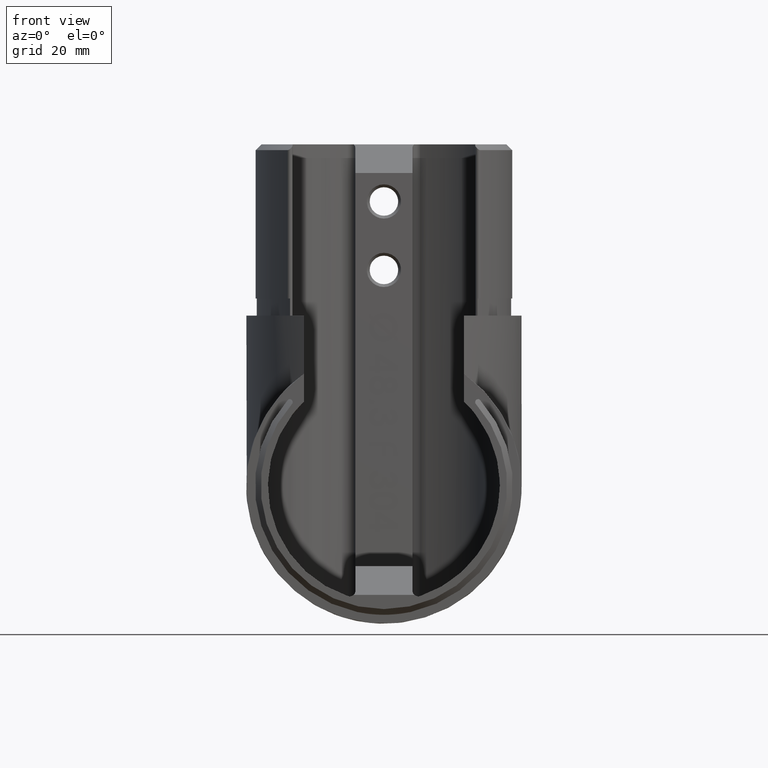
[diagram: clean part render]
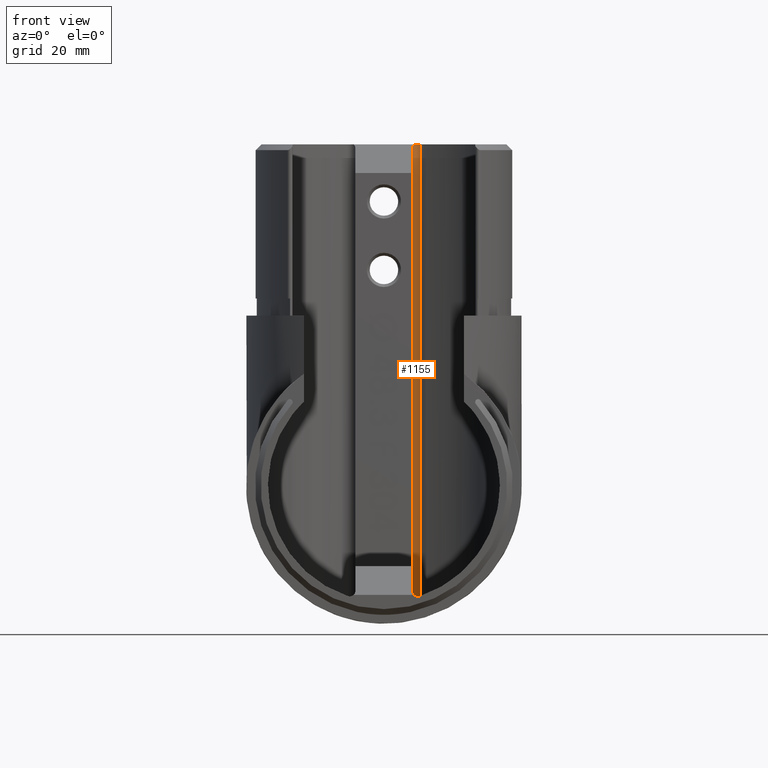
[diagram: same view with one face highlighted and labeled with its STEP entity id]
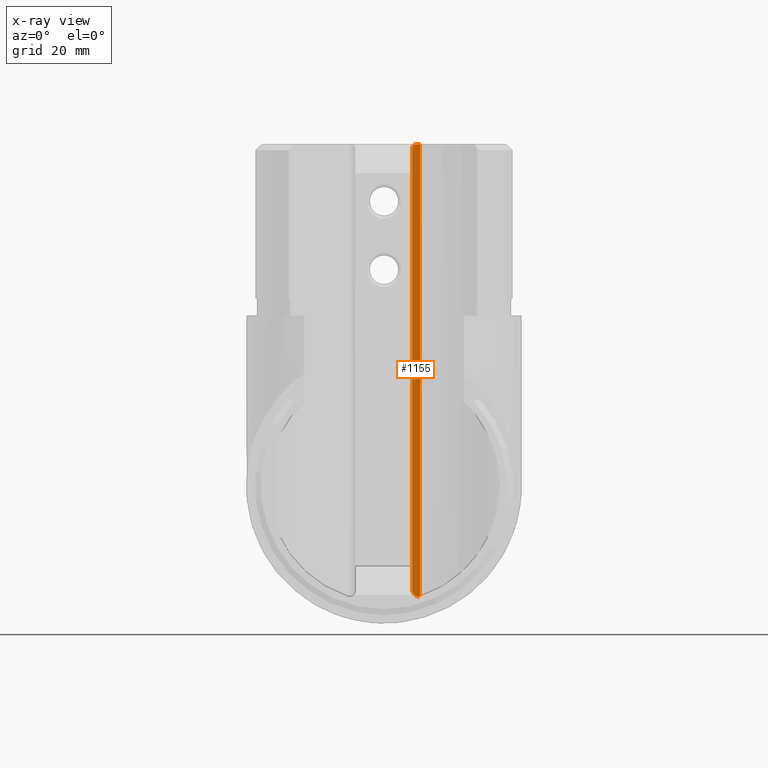
[diagram: x-ray of the same camera — body ghosted, the highlighted face saturated]
A machine part, front view. The second image highlights one B-rep face of the part: STEP entity #1155.
The next image is the same camera in x-ray: the body ghosted, the highlighted face saturated — about 0% of this face is hidden behind the body in this view.
In plain terms, the highlighted cylindrical surface (edge-blend (fillet) strip) has radius 1 mm, axis along (0, -0, 1).
Its self-contained STEP definition (entity closure, byte-faithful):
#149 = DIRECTION ( 'NONE',  ( -0.0000000000000000000, 1.162293786249117100E-016, -1.000000000000000000 ) ) ;
#1155 = ADVANCED_FACE ( 'NONE', ( #11790 ), #7794, .F. ) ;
#1224 = CARTESIAN_POINT ( 'NONE',  ( 5.000000000000002700, 48.99060178258699900, -19.14060178258699100 ) ) ;
#1740 = EDGE_CURVE ( 'NONE', #7607, #15213, #20425, .T. ) ;
#4608 = VERTEX_POINT ( 'NONE', #24012 ) ;
#5148 = CARTESIAN_POINT ( 'NONE',  ( 5.000000000000000900, 48.24626320751038100, -18.39626320751036900 ) ) ;
#6542 = CARTESIAN_POINT ( 'NONE',  ( 6.310077519379847300, 49.19697448438429900, 2.248686822592009200E-015 ) ) ;
#6852 = CARTESIAN_POINT ( 'NONE',  ( 6.310077519379850800, 49.19697448438429900, -19.34697448438430100 ) ) ;
#6918 = EDGE_CURVE ( 'NONE', #24175, #7607, #10136, .T. ) ;
#7453 = DIRECTION ( 'NONE',  ( -1.791851119715557300E-032, -1.162293786249117100E-016, 1.000000000000000000 ) ) ;
#7607 = VERTEX_POINT ( 'NONE', #12522 ) ;
#7794 = CYLINDRICAL_SURFACE ( 'NONE', #7894, 1.000000000000000900 ) ;
#7894 = AXIS2_PLACEMENT_3D ( 'NONE', #22112, #10361, #8646 ) ;
#8646 = DIRECTION ( 'NONE',  ( 0.0000000000000000000, -1.000000000000000000, -1.162293786249115900E-016 ) ) ;
#9300 = CARTESIAN_POINT ( 'NONE',  ( 5.000000000000000900, 48.24626320751037400, 59.85000000000000100 ) ) ;
#9347 = VECTOR ( 'NONE', #149, 1000.000000000000000 ) ;
#9651 = VECTOR ( 'NONE', #7453, 1000.000000000000000 ) ;
#9988 = LINE ( 'NONE', #9300, #9651 ) ;
#10136 = CIRCLE ( 'NONE', #22583, 1.000000000000000000 ) ;
#10361 = DIRECTION ( 'NONE',  ( 0.0000000000000000000, -1.162293786249117100E-016, 1.000000000000000000 ) ) ;
#10532 = DIRECTION ( 'NONE',  ( -0.0000000000000000000, -0.0000000000000000000, -1.000000000000000000 ) ) ;
#10651 =( BOUNDED_CURVE ( )  B_SPLINE_CURVE ( 3, ( #24091, #12351, #22475, #24178 ),
 .UNSPECIFIED., .F., .F. ) 
 B_SPLINE_CURVE_WITH_KNOTS ( ( 4, 4 ),
 ( 4.712388980359855300, 5.493032545230442500 ),
 .UNSPECIFIED. ) 
 CURVE ( )  GEOMETRIC_REPRESENTATION_ITEM ( )  RATIONAL_B_SPLINE_CURVE ( ( 1.000000000000000000, 0.9498577826806491300, 0.9498577826806491300, 1.000000000000000000 ) ) 
 REPRESENTATION_ITEM ( '' )  );
#11251 = EDGE_LOOP ( 'NONE', ( #15614, #24566, #16526, #23962, #24798 ) ) ;
#11790 = FACE_OUTER_BOUND ( 'NONE', #11251, .T. ) ;
#12351 = CARTESIAN_POINT ( 'NONE',  ( 4.999999999993368000, 48.51331091495099200, 59.41331091494989600 ) ) ;
#12522 = CARTESIAN_POINT ( 'NONE',  ( 6.310077519379848200, 49.19697448438429900, 59.85000000000000100 ) ) ;
#12561 =( BOUNDED_CURVE ( )  B_SPLINE_CURVE ( 3, ( #6852, #14923, #1224, #18626 ),
 .UNSPECIFIED., .F., .F. ) 
 B_SPLINE_CURVE_WITH_KNOTS ( ( 4, 4 ),
 ( 2.826318083934701100, 4.712388980384689700 ),
 .UNSPECIFIED. ) 
 CURVE ( )  GEOMETRIC_REPRESENTATION_ITEM ( )  RATIONAL_B_SPLINE_CURVE ( ( 1.000000000000000000, 0.7248893405717344900, 0.7248893405717344900, 1.000000000000000000 ) ) 
 REPRESENTATION_ITEM ( '' )  );
#12587 = DIRECTION ( 'NONE',  ( 1.000000000000000000, -6.938893903907228400E-015, 0.0000000000000000000 ) ) ;
#14923 = CARTESIAN_POINT ( 'NONE',  ( 5.602426442242236100, 49.42777714332278500, -19.57777714332278100 ) ) ;
#15213 = VERTEX_POINT ( 'NONE', #18003 ) ;
#15524 = EDGE_CURVE ( 'NONE', #15213, #18057, #12561, .T. ) ;
#15614 = ORIENTED_EDGE ( 'NONE', *, *, #25093, .F. ) ;
#16117 = CARTESIAN_POINT ( 'NONE',  ( 5.289539215088972800, 48.95000000000001700, 59.85000000000000100 ) ) ;
#16526 = ORIENTED_EDGE ( 'NONE', *, *, #15524, .F. ) ;
#18003 = CARTESIAN_POINT ( 'NONE',  ( 6.310077519379850800, 49.19697448438429900, -19.34697448438430100 ) ) ;
#18057 = VERTEX_POINT ( 'NONE', #5148 ) ;
#18626 = CARTESIAN_POINT ( 'NONE',  ( 5.000000000000000900, 48.24626320751038100, -18.39626320751036900 ) ) ;
#20425 = LINE ( 'NONE', #6542, #9347 ) ;
#22112 = CARTESIAN_POINT ( 'NONE',  ( 6.000000000000000000, 48.24626320751038100, 2.138186241629256500E-015 ) ) ;
#22273 = CARTESIAN_POINT ( 'NONE',  ( 6.000000000000000000, 48.24626320751037400, 59.85000000000000100 ) ) ;
#22286 = EDGE_CURVE ( 'NONE', #18057, #4608, #9988, .T. ) ;
#22475 = CARTESIAN_POINT ( 'NONE',  ( 5.101607917995523600, 48.76027307614541700, 59.66027307614493900 ) ) ;
#22583 = AXIS2_PLACEMENT_3D ( 'NONE', #22273, #10532, #12587 ) ;
#23962 = ORIENTED_EDGE ( 'NONE', *, *, #1740, .F. ) ;
#24012 = CARTESIAN_POINT ( 'NONE',  ( 5.000000000000000900, 48.24626320751690400, 59.14626320745242100 ) ) ;
#24091 = CARTESIAN_POINT ( 'NONE',  ( 5.000000000000000900, 48.24626320751690400, 59.14626320745242100 ) ) ;
#24175 = VERTEX_POINT ( 'NONE', #16117 ) ;
#24178 = CARTESIAN_POINT ( 'NONE',  ( 5.289539215088972800, 48.95000000000001700, 59.85000000000000100 ) ) ;
#24566 = ORIENTED_EDGE ( 'NONE', *, *, #22286, .F. ) ;
#24798 = ORIENTED_EDGE ( 'NONE', *, *, #6918, .F. ) ;
#25093 = EDGE_CURVE ( 'NONE', #4608, #24175, #10651, .T. ) ;